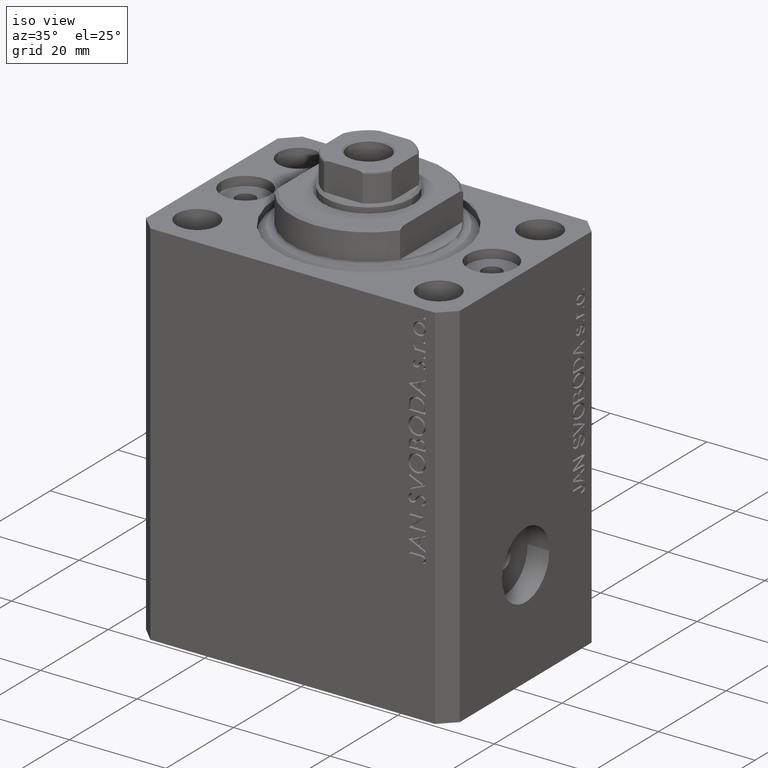
[diagram: clean part render]
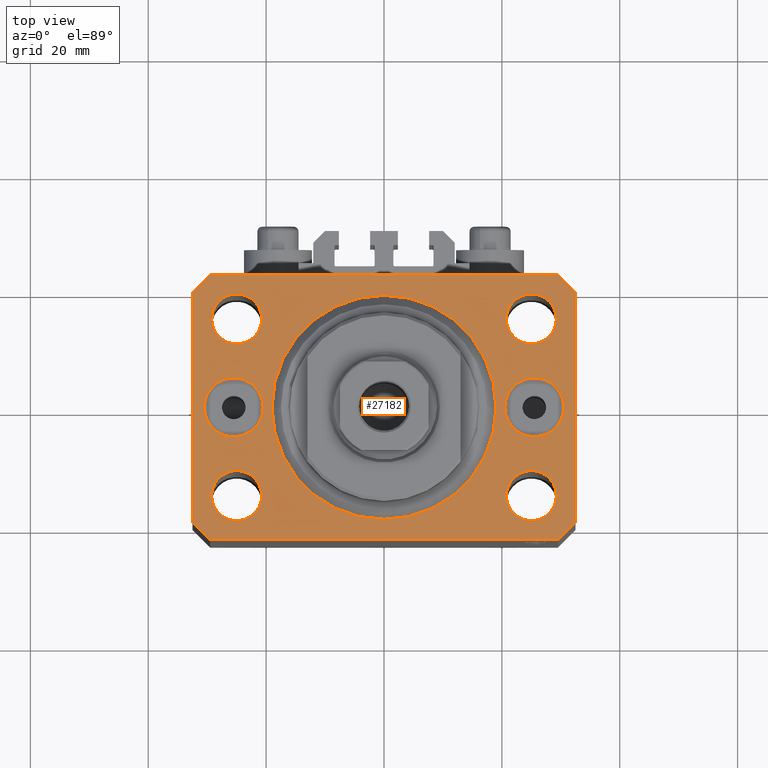
[diagram: tour spotlight — one face highlighted and labeled with its STEP entity id]
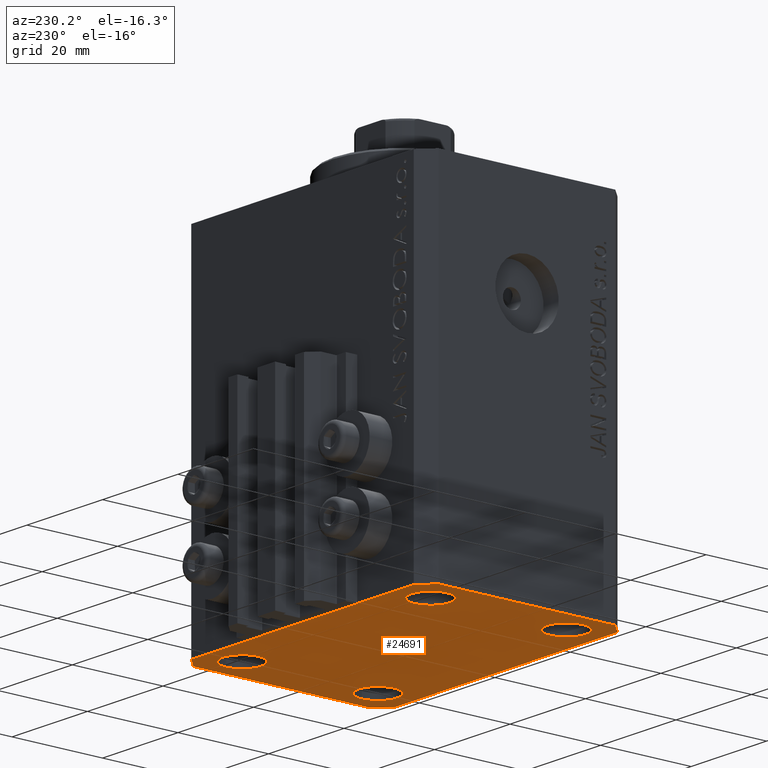
[diagram: tour spotlight — one face highlighted and labeled with its STEP entity id]
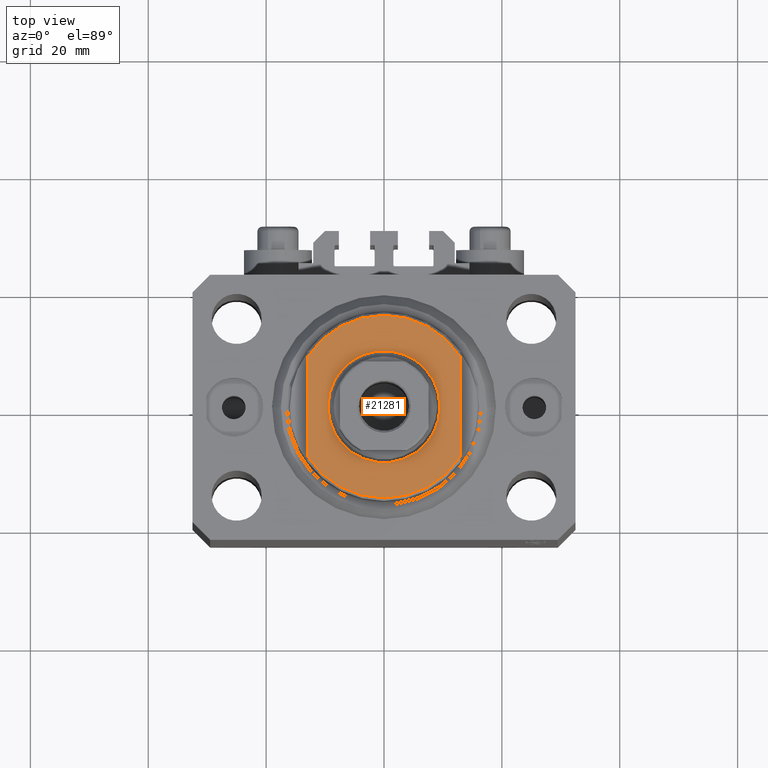
[diagram: tour spotlight — one face highlighted and labeled with its STEP entity id]
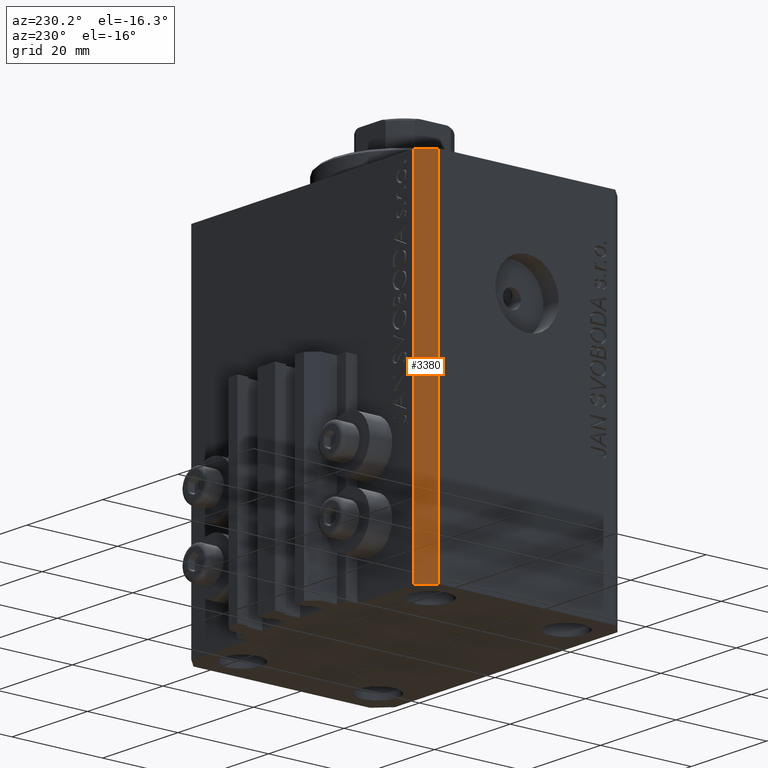
[diagram: tour spotlight — one face highlighted and labeled with its STEP entity id]
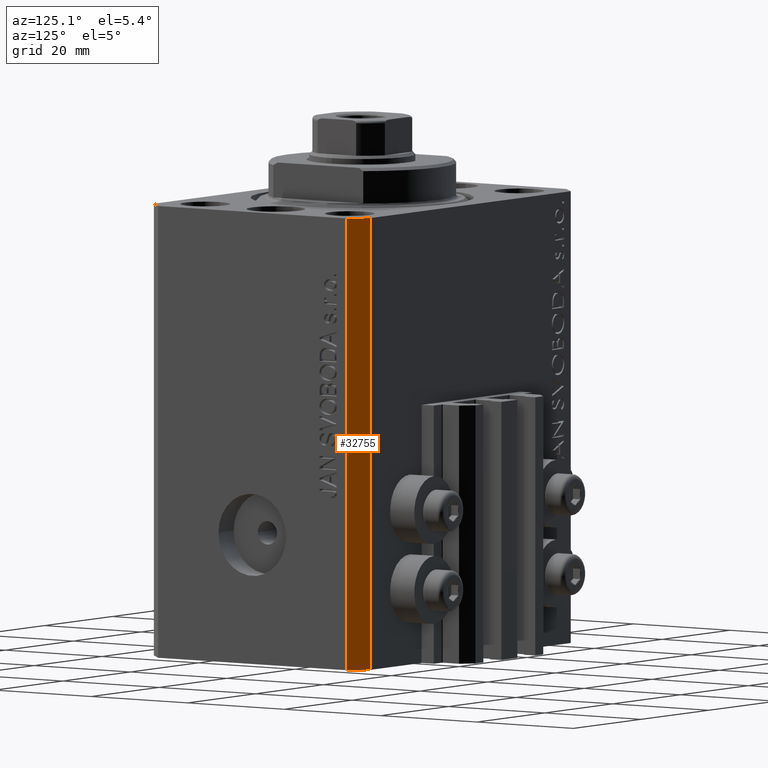
[diagram: tour spotlight — one face highlighted and labeled with its STEP entity id]
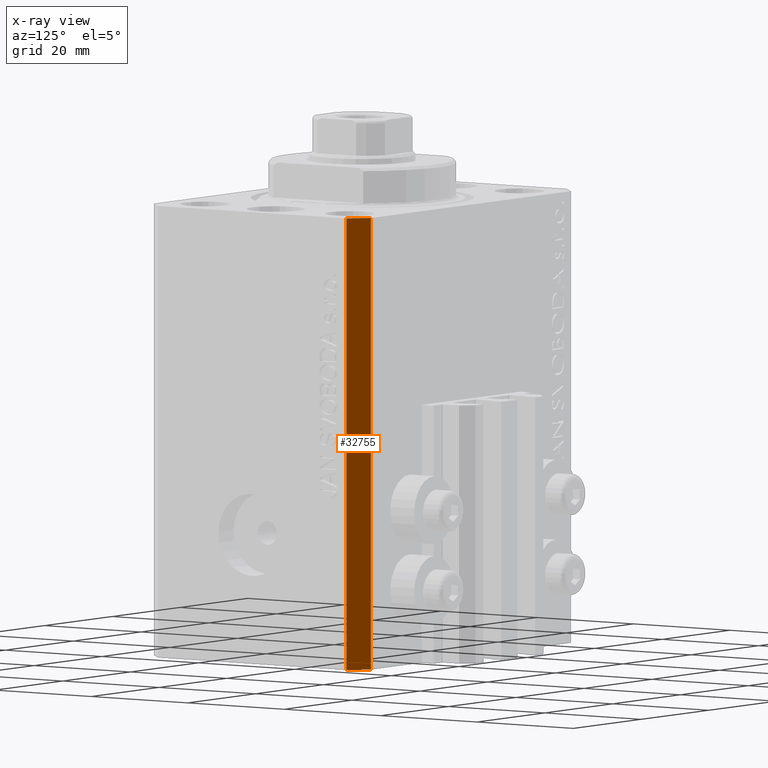
[diagram: x-ray of the same camera — body ghosted, this tour face saturated]
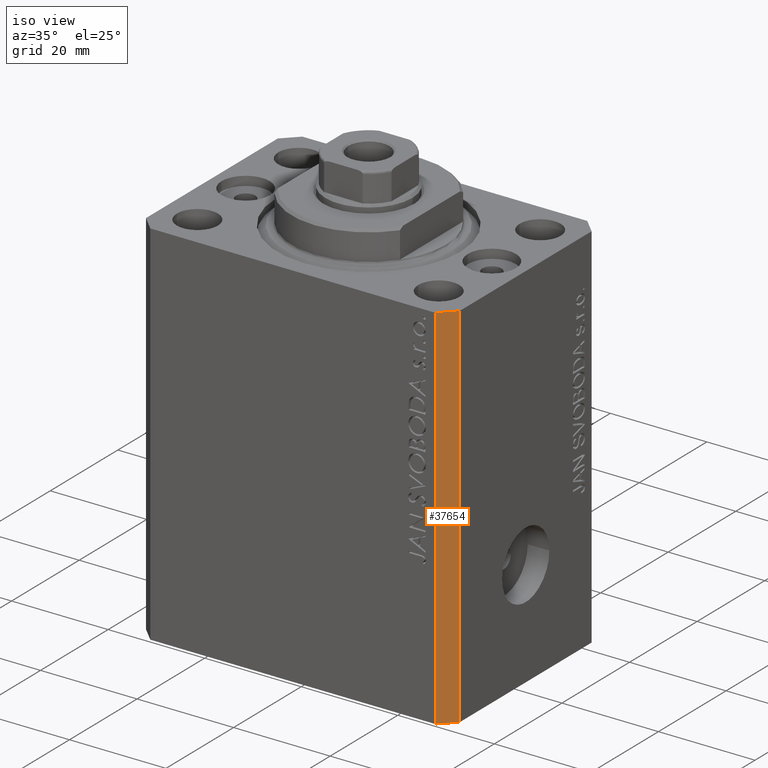
[diagram: tour spotlight — one face highlighted and labeled with its STEP entity id]
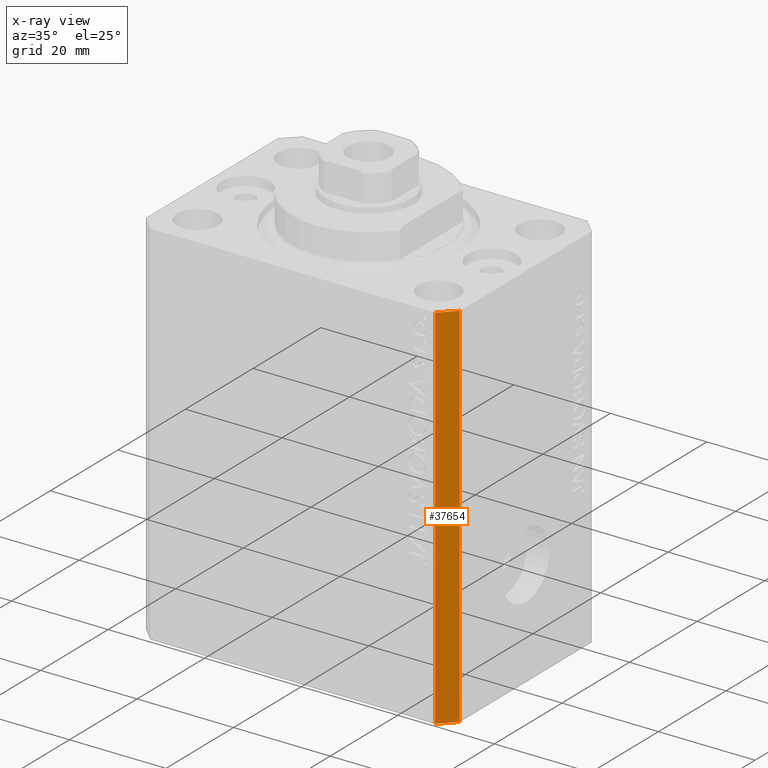
[diagram: x-ray of the same camera — body ghosted, this tour face saturated]
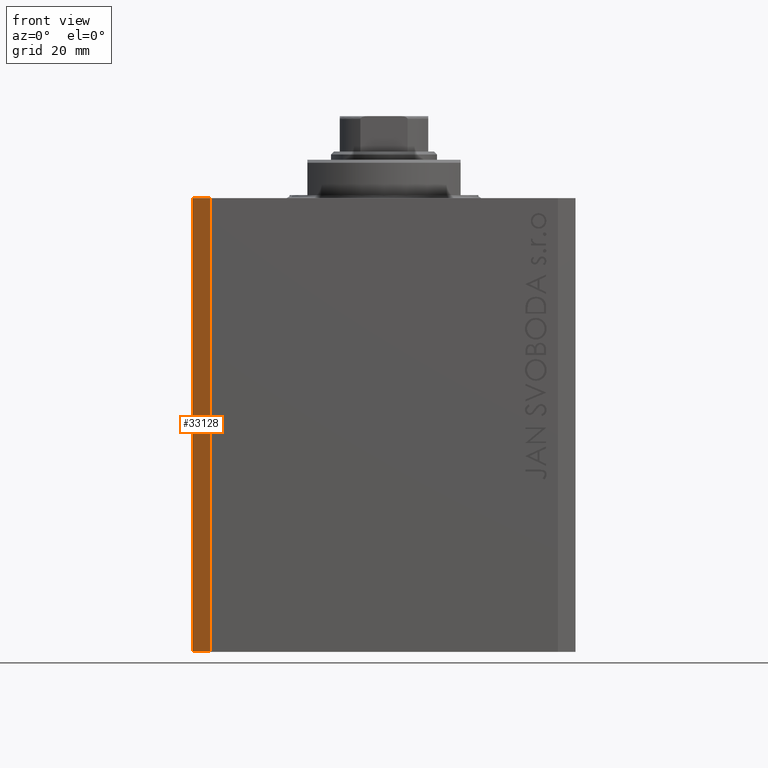
[diagram: tour spotlight — one face highlighted and labeled with its STEP entity id]
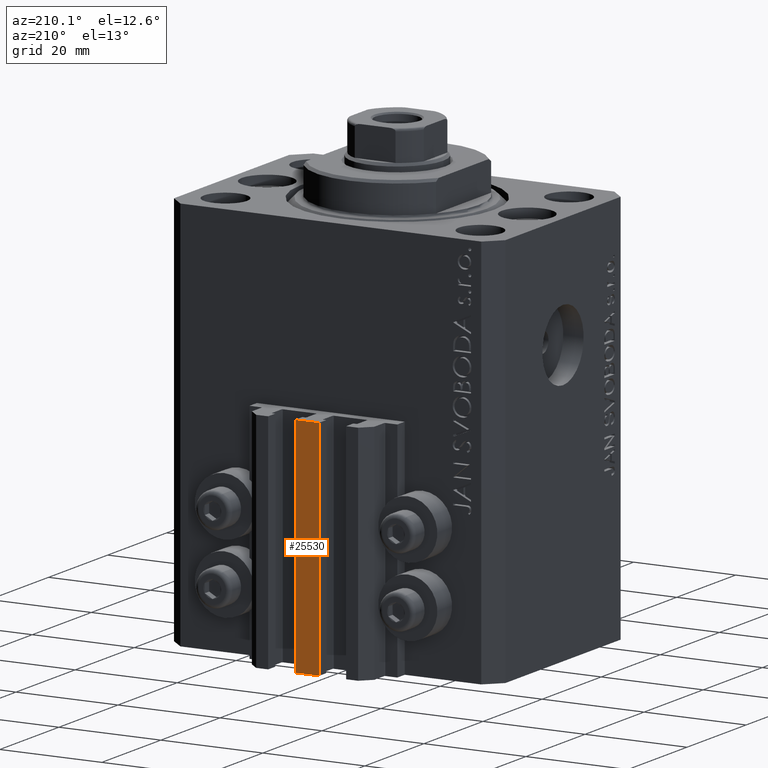
[diagram: tour spotlight — one face highlighted and labeled with its STEP entity id]
A machine part: a face-by-face anatomy tour. The part has 1033 B-rep faces; the first image is the clean iso view, then the 8 largest visible faces are spotlighted one at a time (largest first), each with its STEP entity span.

Face 1 — top view, entity #27182. In plain terms, the highlighted planar face has unit normal (0, 0, 1).
Definition (entity closure, byte-faithful):
#15 = CARTESIAN_POINT ( 'NONE',  ( -24.99999999999999289, -15.00000000000000355, 0.000000000000000000 ) ) ;
#552 = CARTESIAN_POINT ( 'NONE',  ( 25.00000000000000000, 14.99999999999999289, 0.000000000000000000 ) ) ;
#612 = DIRECTION ( 'NONE',  ( 0.000000000000000000, 0.000000000000000000, 1.000000000000000000 ) ) ;
#964 = AXIS2_PLACEMENT_3D ( 'NONE', #30254, #41700, #38351 ) ;
#1404 = CIRCLE ( 'NONE', #8292, 4.250000000040370374 ) ;
#1560 = DIRECTION ( 'NONE',  ( 1.000000000000000000, 0.000000000000000000, 0.000000000000000000 ) ) ;
#1637 = DIRECTION ( 'NONE',  ( -0.7071067811865344721, 0.7071067811865606734, 0.000000000000000000 ) ) ;
#2575 = EDGE_CURVE ( 'NONE', #11910, #44910, #19996, .T. ) ;
#2680 = CARTESIAN_POINT ( 'NONE',  ( -32.49999999999650413, 19.49999999999949907, 0.000000000000000000 ) ) ;
#2895 = DIRECTION ( 'NONE',  ( 1.000000000000000000, 0.000000000000000000, 0.000000000000000000 ) ) ;
#2903 = FACE_BOUND ( 'NONE', #36164, .T. ) ;
#4008 = VERTEX_POINT ( 'NONE', #40506 ) ;
#4134 = EDGE_CURVE ( 'NONE', #31466, #21247, #16990, .T. ) ;
#4197 = AXIS2_PLACEMENT_3D ( 'NONE', #552, #28978, #29923 ) ;
#4260 = DIRECTION ( 'NONE',  ( 1.000000000000000000, 0.000000000000000000, 0.000000000000000000 ) ) ;
#4503 = EDGE_CURVE ( 'NONE', #39502, #46686, #16268, .T. ) ;
#4995 = VERTEX_POINT ( 'NONE', #37355 ) ;
#5553 = LINE ( 'NONE', #16057, #20631 ) ;
#5811 = VERTEX_POINT ( 'NONE', #41770 ) ;
#6120 = EDGE_LOOP ( 'NONE', ( #44069, #7423 ) ) ;
#6139 = CIRCLE ( 'NONE', #31272, 4.250000000040370374 ) ;
#6505 = ORIENTED_EDGE ( 'NONE', *, *, #21276, .F. ) ;
#6633 = CARTESIAN_POINT ( 'NONE',  ( 25.00000000000000000, 14.99999999999999289, 0.000000000000000000 ) ) ;
#6729 = FACE_BOUND ( 'NONE', #33712, .T. ) ;
#6904 = VECTOR ( 'NONE', #16334, 1000.000000000000000 ) ;
#7124 = CARTESIAN_POINT ( 'NONE',  ( -20.74999999995962341, -15.00000000000000355, 0.000000000000000000 ) ) ;
#7423 = ORIENTED_EDGE ( 'NONE', *, *, #4134, .T. ) ;
#7906 = ORIENTED_EDGE ( 'NONE', *, *, #2575, .F. ) ;
#7914 = EDGE_CURVE ( 'NONE', #44910, #11910, #37694, .T. ) ;
#7955 = DIRECTION ( 'NONE',  ( 0.000000000000000000, 0.000000000000000000, 1.000000000000000000 ) ) ;
#8037 = CARTESIAN_POINT ( 'NONE',  ( 20.75000000002367884, -15.00000000000000355, 0.000000000000000000 ) ) ;
#8115 = ORIENTED_EDGE ( 'NONE', *, *, #36888, .F. ) ;
#8292 = AXIS2_PLACEMENT_3D ( 'NONE', #45798, #20495, #41974 ) ;
#8418 = CARTESIAN_POINT ( 'NONE',  ( 0.000000000000000000, 0.000000000000000000, 0.000000000000000000 ) ) ;
#9341 = CARTESIAN_POINT ( 'NONE',  ( 20.75000000004271072, 14.99999999999999289, 0.000000000000000000 ) ) ;
#9593 = CARTESIAN_POINT ( 'NONE',  ( 24.99999999999999289, -15.00000000000000355, 0.000000000000000000 ) ) ;
#9733 = DIRECTION ( 'NONE',  ( 1.000000000000000000, 0.000000000000000000, 0.000000000000000000 ) ) ;
#9916 = DIRECTION ( 'NONE',  ( 0.000000000000000000, 0.000000000000000000, 1.000000000000000000 ) ) ;
#10064 = DIRECTION ( 'NONE',  ( 0.000000000000000000, 0.000000000000000000, 1.000000000000000000 ) ) ;
#10290 = ORIENTED_EDGE ( 'NONE', *, *, #32909, .T. ) ;
#11288 = AXIS2_PLACEMENT_3D ( 'NONE', #26573, #7955, #41120 ) ;
#11535 = ORIENTED_EDGE ( 'NONE', *, *, #23584, .T. ) ;
#11590 = AXIS2_PLACEMENT_3D ( 'NONE', #45735, #9916, #39037 ) ;
#11832 = LINE ( 'NONE', #22831, #19013 ) ;
#11910 = VERTEX_POINT ( 'NONE', #30045 ) ;
#12277 = VERTEX_POINT ( 'NONE', #13011 ) ;
#12305 = DIRECTION ( 'NONE',  ( 1.000000000000000000, 0.000000000000000000, 0.000000000000000000 ) ) ;
#12447 = VERTEX_POINT ( 'NONE', #27943 ) ;
#13011 = CARTESIAN_POINT ( 'NONE',  ( -29.49999999999650413, 22.49999999999949907, 0.000000000000000000 ) ) ;
#13049 = EDGE_CURVE ( 'NONE', #30140, #12447, #43062, .T. ) ;
#13254 = CARTESIAN_POINT ( 'NONE',  ( -32.49999999999650413, 19.49999999999949907, 0.000000000000000000 ) ) ;
#13608 = VECTOR ( 'NONE', #1637, 1000.000000000000000 ) ;
#13661 = FACE_BOUND ( 'NONE', #26842, .T. ) ;
#14029 = ORIENTED_EDGE ( 'NONE', *, *, #23463, .F. ) ;
#14128 = FACE_BOUND ( 'NONE', #6120, .T. ) ;
#14380 = CARTESIAN_POINT ( 'NONE',  ( -29.49999999999650413, -22.49999999999949907, 0.000000000000000000 ) ) ;
#14434 = ORIENTED_EDGE ( 'NONE', *, *, #4503, .F. ) ;
#14524 = CARTESIAN_POINT ( 'NONE',  ( 25.50000000000000000, 0.000000000000000000, 0.000000000000000000 ) ) ;
#14581 = DIRECTION ( 'NONE',  ( 1.000000000000000000, 0.000000000000000000, 0.000000000000000000 ) ) ;
#14721 = ORIENTED_EDGE ( 'NONE', *, *, #39609, .T. ) ;
#14804 = VERTEX_POINT ( 'NONE', #41673 ) ;
#15010 = VECTOR ( 'NONE', #46361, 1000.000000000000000 ) ;
#15108 = CIRCLE ( 'NONE', #28835, 5.000000000003342215 ) ;
#15340 = CARTESIAN_POINT ( 'NONE',  ( -20.49999999999665690, 0.000000000000000000, 0.000000000000000000 ) ) ;
#15386 = DIRECTION ( 'NONE',  ( 1.000000000000000000, 0.000000000000000000, 0.000000000000000000 ) ) ;
#15908 = VERTEX_POINT ( 'NONE', #8037 ) ;
#15990 = VECTOR ( 'NONE', #23294, 1000.000000000000000 ) ;
#16057 = CARTESIAN_POINT ( 'NONE',  ( -32.49999999999650413, -19.49999999999949907, 0.000000000000000000 ) ) ;
#16089 = LINE ( 'NONE', #26377, #6904 ) ;
#16184 = ORIENTED_EDGE ( 'NONE', *, *, #13049, .F. ) ;
#16268 = CIRCLE ( 'NONE', #35328, 19.00000000000000000 ) ;
#16334 = DIRECTION ( 'NONE',  ( -1.000000000000000000, -3.528251137580330676E-16, 0.000000000000000000 ) ) ;
#16764 = LINE ( 'NONE', #2680, #15010 ) ;
#16802 = ORIENTED_EDGE ( 'NONE', *, *, #23768, .F. ) ;
#16990 = CIRCLE ( 'NONE', #964, 5.000000000003342215 ) ;
#18334 = CARTESIAN_POINT ( 'NONE',  ( -32.49999999999650413, -19.49999999999949907, 0.000000000000000000 ) ) ;
#18544 = ORIENTED_EDGE ( 'NONE', *, *, #30740, .F. ) ;
#18641 = EDGE_CURVE ( 'NONE', #26662, #46343, #16764, .T. ) ;
#18775 = EDGE_CURVE ( 'NONE', #12447, #30140, #37889, .T. ) ;
#19013 = VECTOR ( 'NONE', #26407, 1000.000000000000000 ) ;
#19081 = VERTEX_POINT ( 'NONE', #45269 ) ;
#19096 = ORIENTED_EDGE ( 'NONE', *, *, #18641, .T. ) ;
#19739 = ORIENTED_EDGE ( 'NONE', *, *, #27063, .T. ) ;
#19785 = EDGE_CURVE ( 'NONE', #21247, #31466, #28112, .T. ) ;
#19996 = CIRCLE ( 'NONE', #11590, 4.250000000021375790 ) ;
#20495 = DIRECTION ( 'NONE',  ( 0.000000000000000000, 0.000000000000000000, 1.000000000000000000 ) ) ;
#20631 = VECTOR ( 'NONE', #26817, 1000.000000000000114 ) ;
#21247 = VERTEX_POINT ( 'NONE', #27749 ) ;
#21276 = EDGE_CURVE ( 'NONE', #4008, #15908, #24375, .T. ) ;
#21395 = VERTEX_POINT ( 'NONE', #32699 ) ;
#22617 = VERTEX_POINT ( 'NONE', #34198 ) ;
#22748 = DIRECTION ( 'NONE',  ( 0.000000000000000000, 0.000000000000000000, 1.000000000000000000 ) ) ;
#22831 = CARTESIAN_POINT ( 'NONE',  ( 32.49999999999651124, -19.49999999999949196, 0.000000000000000000 ) ) ;
#23069 = DIRECTION ( 'NONE',  ( 0.000000000000000000, 0.000000000000000000, 1.000000000000000000 ) ) ;
#23213 = CARTESIAN_POINT ( 'NONE',  ( 20.49999999999665690, 6.123233995740857512E-16, 0.000000000000000000 ) ) ;
#23294 = DIRECTION ( 'NONE',  ( 0.7071067811865483499, 0.7071067811865466846, 0.000000000000000000 ) ) ;
#23463 = EDGE_CURVE ( 'NONE', #14804, #23727, #15108, .T. ) ;
#23509 = ORIENTED_EDGE ( 'NONE', *, *, #27279, .F. ) ;
#23584 = EDGE_CURVE ( 'NONE', #12277, #26662, #46893, .T. ) ;
#23671 = AXIS2_PLACEMENT_3D ( 'NONE', #38713, #24666, #28233 ) ;
#23727 = VERTEX_POINT ( 'NONE', #15340 ) ;
#23768 = EDGE_CURVE ( 'NONE', #23727, #14804, #40264, .T. ) ;
#24188 = PLANE ( 'NONE',  #23671 ) ;
#24224 = ORIENTED_EDGE ( 'NONE', *, *, #7914, .F. ) ;
#24375 = CIRCLE ( 'NONE', #35010, 4.249999999976314058 ) ;
#24421 = CIRCLE ( 'NONE', #27467, 19.00000000000000000 ) ;
#24666 = DIRECTION ( 'NONE',  ( 0.000000000000000000, 0.000000000000000000, 1.000000000000000000 ) ) ;
#26058 = ORIENTED_EDGE ( 'NONE', *, *, #18775, .F. ) ;
#26377 = CARTESIAN_POINT ( 'NONE',  ( 29.49999999999707967, 22.49999999999952038, 0.000000000000000000 ) ) ;
#26407 = DIRECTION ( 'NONE',  ( 1.334402673828349134E-14, 1.000000000000000000, 0.000000000000000000 ) ) ;
#26573 = CARTESIAN_POINT ( 'NONE',  ( -25.50000000000000000, 0.000000000000000000, 0.000000000000000000 ) ) ;
#26662 = VERTEX_POINT ( 'NONE', #13254 ) ;
#26817 = DIRECTION ( 'NONE',  ( 0.7071067811865474617, -0.7071067811865474617, 0.000000000000000000 ) ) ;
#26842 = EDGE_LOOP ( 'NONE', ( #26058, #16184 ) ) ;
#27063 = EDGE_CURVE ( 'NONE', #46343, #22617, #5553, .T. ) ;
#27182 = ADVANCED_FACE ( 'NONE', ( #31557, #2903, #13661, #6729, #32484, #46838, #43477, #14128 ), #24188, .T. ) ;
#27279 = EDGE_CURVE ( 'NONE', #38671, #19081, #6139, .T. ) ;
#27467 = AXIS2_PLACEMENT_3D ( 'NONE', #45022, #612, #12305 ) ;
#27546 = EDGE_CURVE ( 'NONE', #46686, #39502, #24421, .T. ) ;
#27749 = CARTESIAN_POINT ( 'NONE',  ( 30.50000000000333955, 0.000000000000000000, 0.000000000000000000 ) ) ;
#27943 = CARTESIAN_POINT ( 'NONE',  ( 29.24999999995729283, 14.99999999999999289, 0.000000000000000000 ) ) ;
#28112 = CIRCLE ( 'NONE', #38008, 5.000000000003342215 ) ;
#28233 = DIRECTION ( 'NONE',  ( 1.000000000000000000, 0.000000000000000000, -0.000000000000000000 ) ) ;
#28784 = CARTESIAN_POINT ( 'NONE',  ( 19.00000000000000000, 0.000000000000000000, 0.000000000000000000 ) ) ;
#28835 = AXIS2_PLACEMENT_3D ( 'NONE', #30448, #23069, #1560 ) ;
#28946 = DIRECTION ( 'NONE',  ( 1.000000000000000000, 0.000000000000000000, 0.000000000000000000 ) ) ;
#28967 = CARTESIAN_POINT ( 'NONE',  ( -29.49999999999650413, 22.49999999999949907, 0.000000000000000000 ) ) ;
#28978 = DIRECTION ( 'NONE',  ( 0.000000000000000000, 0.000000000000000000, 1.000000000000000000 ) ) ;
#29086 = DIRECTION ( 'NONE',  ( 0.000000000000000000, -0.000000000000000000, -1.000000000000000000 ) ) ;
#29923 = DIRECTION ( 'NONE',  ( 1.000000000000000000, 0.000000000000000000, 0.000000000000000000 ) ) ;
#30045 = CARTESIAN_POINT ( 'NONE',  ( -29.25000000002137668, 14.99999999999999645, 0.000000000000000000 ) ) ;
#30140 = VERTEX_POINT ( 'NONE', #9341 ) ;
#30254 = CARTESIAN_POINT ( 'NONE',  ( 25.50000000000000000, 0.000000000000000000, 0.000000000000000000 ) ) ;
#30448 = CARTESIAN_POINT ( 'NONE',  ( -25.50000000000000000, 0.000000000000000000, 0.000000000000000000 ) ) ;
#30735 = EDGE_CURVE ( 'NONE', #22617, #4995, #39919, .T. ) ;
#30740 = EDGE_CURVE ( 'NONE', #15908, #4008, #41296, .T. ) ;
#30857 = AXIS2_PLACEMENT_3D ( 'NONE', #41647, #33778, #15386 ) ;
#31064 = EDGE_LOOP ( 'NONE', ( #16802, #14029 ) ) ;
#31228 = VERTEX_POINT ( 'NONE', #40325 ) ;
#31272 = AXIS2_PLACEMENT_3D ( 'NONE', #15, #43938, #14581 ) ;
#31466 = VERTEX_POINT ( 'NONE', #23213 ) ;
#31557 = FACE_OUTER_BOUND ( 'NONE', #43212, .T. ) ;
#32484 = FACE_BOUND ( 'NONE', #40909, .T. ) ;
#32699 = CARTESIAN_POINT ( 'NONE',  ( 32.49999999999651124, -19.49999999999949196, 0.000000000000000000 ) ) ;
#32909 = EDGE_CURVE ( 'NONE', #31228, #12277, #16089, .T. ) ;
#33706 = CARTESIAN_POINT ( 'NONE',  ( -20.74999999997862687, 14.99999999999999645, 0.000000000000000000 ) ) ;
#33712 = EDGE_LOOP ( 'NONE', ( #6505, #18544 ) ) ;
#33778 = DIRECTION ( 'NONE',  ( 0.000000000000000000, 0.000000000000000000, 1.000000000000000000 ) ) ;
#33874 = CARTESIAN_POINT ( 'NONE',  ( 32.49999999999702993, 19.49999999999945999, 0.000000000000000000 ) ) ;
#33987 = EDGE_CURVE ( 'NONE', #21395, #5811, #11832, .T. ) ;
#34198 = CARTESIAN_POINT ( 'NONE',  ( -29.49999999999650413, -22.49999999999949907, 0.000000000000000000 ) ) ;
#34937 = EDGE_LOOP ( 'NONE', ( #14434, #41332 ) ) ;
#35010 = AXIS2_PLACEMENT_3D ( 'NONE', #9593, #10064, #2895 ) ;
#35204 = AXIS2_PLACEMENT_3D ( 'NONE', #39233, #43060, #28946 ) ;
#35328 = AXIS2_PLACEMENT_3D ( 'NONE', #8418, #22748, #37291 ) ;
#36164 = EDGE_LOOP ( 'NONE', ( #24224, #7906 ) ) ;
#36624 = EDGE_CURVE ( 'NONE', #5811, #31228, #45334, .T. ) ;
#36888 = EDGE_CURVE ( 'NONE', #19081, #38671, #1404, .T. ) ;
#37123 = CARTESIAN_POINT ( 'NONE',  ( -19.00000000000000000, 2.326828918379970970E-15, 0.000000000000000000 ) ) ;
#37291 = DIRECTION ( 'NONE',  ( 1.000000000000000000, 0.000000000000000000, 0.000000000000000000 ) ) ;
#37355 = CARTESIAN_POINT ( 'NONE',  ( 29.49999999999650413, -22.49999999999949196, 0.000000000000000000 ) ) ;
#37525 = ORIENTED_EDGE ( 'NONE', *, *, #33987, .T. ) ;
#37694 = CIRCLE ( 'NONE', #30857, 4.250000000021375790 ) ;
#37815 = LINE ( 'NONE', #44991, #15990 ) ;
#37889 = CIRCLE ( 'NONE', #39426, 4.249999999957291053 ) ;
#38008 = AXIS2_PLACEMENT_3D ( 'NONE', #14524, #29086, #4260 ) ;
#38351 = DIRECTION ( 'NONE',  ( 1.000000000000000000, 0.000000000000000000, 0.000000000000000000 ) ) ;
#38671 = VERTEX_POINT ( 'NONE', #7124 ) ;
#38713 = CARTESIAN_POINT ( 'NONE',  ( 0.000000000000000000, 0.000000000000000000, 0.000000000000000000 ) ) ;
#39037 = DIRECTION ( 'NONE',  ( 1.000000000000000000, 0.000000000000000000, 0.000000000000000000 ) ) ;
#39233 = CARTESIAN_POINT ( 'NONE',  ( 24.99999999999999289, -15.00000000000000355, 0.000000000000000000 ) ) ;
#39426 = AXIS2_PLACEMENT_3D ( 'NONE', #6633, #43378, #9733 ) ;
#39502 = VERTEX_POINT ( 'NONE', #28784 ) ;
#39609 = EDGE_CURVE ( 'NONE', #4995, #21395, #37815, .T. ) ;
#39758 = VECTOR ( 'NONE', #40147, 1000.000000000000000 ) ;
#39919 = LINE ( 'NONE', #14380, #39758 ) ;
#40147 = DIRECTION ( 'NONE',  ( 1.000000000000000000, 1.176083712526788232E-16, 0.000000000000000000 ) ) ;
#40264 = CIRCLE ( 'NONE', #11288, 5.000000000003342215 ) ;
#40325 = CARTESIAN_POINT ( 'NONE',  ( 29.49999999999707967, 22.49999999999952038, 0.000000000000000000 ) ) ;
#40506 = CARTESIAN_POINT ( 'NONE',  ( 29.24999999997631051, -15.00000000000000355, 0.000000000000000000 ) ) ;
#40909 = EDGE_LOOP ( 'NONE', ( #23509, #8115 ) ) ;
#41120 = DIRECTION ( 'NONE',  ( 1.000000000000000000, 0.000000000000000000, 0.000000000000000000 ) ) ;
#41296 = CIRCLE ( 'NONE', #35204, 4.249999999976314058 ) ;
#41332 = ORIENTED_EDGE ( 'NONE', *, *, #27546, .F. ) ;
#41647 = CARTESIAN_POINT ( 'NONE',  ( -25.00000000000000000, 14.99999999999999645, 0.000000000000000000 ) ) ;
#41673 = CARTESIAN_POINT ( 'NONE',  ( -30.50000000000333955, 6.123233995740857512E-16, 0.000000000000000000 ) ) ;
#41700 = DIRECTION ( 'NONE',  ( 0.000000000000000000, -0.000000000000000000, -1.000000000000000000 ) ) ;
#41770 = CARTESIAN_POINT ( 'NONE',  ( 32.49999999999702993, 19.49999999999945999, 0.000000000000000000 ) ) ;
#41974 = DIRECTION ( 'NONE',  ( 1.000000000000000000, 0.000000000000000000, 0.000000000000000000 ) ) ;
#42564 = VECTOR ( 'NONE', #43761, 1000.000000000000114 ) ;
#43060 = DIRECTION ( 'NONE',  ( 0.000000000000000000, 0.000000000000000000, 1.000000000000000000 ) ) ;
#43062 = CIRCLE ( 'NONE', #4197, 4.249999999957291053 ) ;
#43165 = ORIENTED_EDGE ( 'NONE', *, *, #30735, .T. ) ;
#43212 = EDGE_LOOP ( 'NONE', ( #10290, #11535, #19096, #19739, #43165, #14721, #37525, #45061 ) ) ;
#43378 = DIRECTION ( 'NONE',  ( 0.000000000000000000, 0.000000000000000000, 1.000000000000000000 ) ) ;
#43477 = FACE_BOUND ( 'NONE', #31064, .T. ) ;
#43761 = DIRECTION ( 'NONE',  ( -0.7071067811865474617, -0.7071067811865474617, 0.000000000000000000 ) ) ;
#43938 = DIRECTION ( 'NONE',  ( 0.000000000000000000, 0.000000000000000000, 1.000000000000000000 ) ) ;
#44069 = ORIENTED_EDGE ( 'NONE', *, *, #19785, .T. ) ;
#44910 = VERTEX_POINT ( 'NONE', #33706 ) ;
#44991 = CARTESIAN_POINT ( 'NONE',  ( 29.49999999999650413, -22.49999999999949196, 0.000000000000000000 ) ) ;
#45022 = CARTESIAN_POINT ( 'NONE',  ( 0.000000000000000000, 0.000000000000000000, 0.000000000000000000 ) ) ;
#45061 = ORIENTED_EDGE ( 'NONE', *, *, #36624, .T. ) ;
#45269 = CARTESIAN_POINT ( 'NONE',  ( -29.25000000004036593, -15.00000000000000355, 0.000000000000000000 ) ) ;
#45334 = LINE ( 'NONE', #33874, #13608 ) ;
#45735 = CARTESIAN_POINT ( 'NONE',  ( -25.00000000000000000, 14.99999999999999645, 0.000000000000000000 ) ) ;
#45798 = CARTESIAN_POINT ( 'NONE',  ( -24.99999999999999289, -15.00000000000000355, 0.000000000000000000 ) ) ;
#46343 = VERTEX_POINT ( 'NONE', #18334 ) ;
#46361 = DIRECTION ( 'NONE',  ( 0.000000000000000000, -1.000000000000000000, 0.000000000000000000 ) ) ;
#46686 = VERTEX_POINT ( 'NONE', #37123 ) ;
#46838 = FACE_BOUND ( 'NONE', #34937, .T. ) ;
#46893 = LINE ( 'NONE', #28967, #42564 ) ;

Face 2 — auxiliary view, entity #24691. In plain terms, the highlighted planar face has unit normal (0, 0, 1).
Definition (entity closure, byte-faithful):
#526 = VERTEX_POINT ( 'NONE', #22994 ) ;
#548 = CARTESIAN_POINT ( 'NONE',  ( 0.000000000000000000, 0.000000000000000000, -77.00000000000000000 ) ) ;
#904 = CARTESIAN_POINT ( 'NONE',  ( 24.99999999999999289, -15.00000000000000355, -77.00000000000000000 ) ) ;
#1024 = EDGE_CURVE ( 'NONE', #16102, #26259, #18862, .T. ) ;
#1074 = DIRECTION ( 'NONE',  ( 0.7071067811865474617, -0.7071067811865474617, 0.000000000000000000 ) ) ;
#1178 = CARTESIAN_POINT ( 'NONE',  ( 29.24999999995729283, 14.99999999999999289, -77.00000000000000000 ) ) ;
#1250 = EDGE_CURVE ( 'NONE', #20041, #41340, #14623, .T. ) ;
#1416 = ORIENTED_EDGE ( 'NONE', *, *, #1024, .F. ) ;
#1423 = EDGE_LOOP ( 'NONE', ( #23517, #21483, #26021, #9669, #40073, #3342, #1416, #45024 ) ) ;
#1736 = EDGE_CURVE ( 'NONE', #526, #37567, #39952, .T. ) ;
#1765 = ORIENTED_EDGE ( 'NONE', *, *, #5617, .F. ) ;
#2162 = DIRECTION ( 'NONE',  ( -0.000000000000000000, -0.000000000000000000, -1.000000000000000000 ) ) ;
#2695 = AXIS2_PLACEMENT_3D ( 'NONE', #13978, #24969, #39497 ) ;
#2698 = LINE ( 'NONE', #7215, #24488 ) ;
#3038 = VECTOR ( 'NONE', #14124, 1000.000000000000000 ) ;
#3224 = VECTOR ( 'NONE', #46649, 1000.000000000000000 ) ;
#3273 = VERTEX_POINT ( 'NONE', #1178 ) ;
#3342 = ORIENTED_EDGE ( 'NONE', *, *, #39549, .F. ) ;
#3365 = CARTESIAN_POINT ( 'NONE',  ( 25.00000000000000000, 14.99999999999999289, -77.00000000000000000 ) ) ;
#3437 = FACE_BOUND ( 'NONE', #19733, .T. ) ;
#3460 = EDGE_LOOP ( 'NONE', ( #17499, #35185 ) ) ;
#4306 = DIRECTION ( 'NONE',  ( -0.000000000000000000, -0.000000000000000000, -1.000000000000000000 ) ) ;
#5291 = VECTOR ( 'NONE', #1074, 1000.000000000000114 ) ;
#5617 = EDGE_CURVE ( 'NONE', #31346, #3273, #6395, .T. ) ;
#6348 = DIRECTION ( 'NONE',  ( 1.000000000000000000, 0.000000000000000000, 0.000000000000000000 ) ) ;
#6395 = CIRCLE ( 'NONE', #14764, 4.249999999957291053 ) ;
#6444 = DIRECTION ( 'NONE',  ( 1.000000000000000000, 0.000000000000000000, 0.000000000000000000 ) ) ;
#6519 = AXIS2_PLACEMENT_3D ( 'NONE', #46327, #2162, #38682 ) ;
#6793 = DIRECTION ( 'NONE',  ( 1.000000000000000000, 0.000000000000000000, -0.000000000000000000 ) ) ;
#6817 = CARTESIAN_POINT ( 'NONE',  ( 20.75000000002367884, -15.00000000000000355, -77.00000000000000000 ) ) ;
#7215 = CARTESIAN_POINT ( 'NONE',  ( 32.49999999999702993, 19.49999999999945999, -77.00000000000000000 ) ) ;
#7320 = CARTESIAN_POINT ( 'NONE',  ( 20.75000000004271072, 14.99999999999999289, -77.00000000000000000 ) ) ;
#7701 = CIRCLE ( 'NONE', #32086, 4.250000000040370374 ) ;
#8028 = VERTEX_POINT ( 'NONE', #21967 ) ;
#8475 = DIRECTION ( 'NONE',  ( -0.000000000000000000, -0.000000000000000000, -1.000000000000000000 ) ) ;
#8517 = CIRCLE ( 'NONE', #45896, 4.250000000021375790 ) ;
#9476 = VERTEX_POINT ( 'NONE', #31195 ) ;
#9669 = ORIENTED_EDGE ( 'NONE', *, *, #33161, .F. ) ;
#10754 = CARTESIAN_POINT ( 'NONE',  ( 29.49999999999707967, 22.49999999999952038, -77.00000000000000000 ) ) ;
#10797 = CARTESIAN_POINT ( 'NONE',  ( 29.49999999999650413, -22.49999999999949196, -77.00000000000000000 ) ) ;
#10869 = CARTESIAN_POINT ( 'NONE',  ( -24.99999999999999289, -15.00000000000000355, -77.00000000000000000 ) ) ;
#11061 = CARTESIAN_POINT ( 'NONE',  ( -29.49999999999650413, -22.49999999999949907, -77.00000000000000000 ) ) ;
#11452 = DIRECTION ( 'NONE',  ( 0.000000000000000000, -1.000000000000000000, 0.000000000000000000 ) ) ;
#11484 = VERTEX_POINT ( 'NONE', #6817 ) ;
#11807 = LINE ( 'NONE', #26380, #5291 ) ;
#12085 = EDGE_LOOP ( 'NONE', ( #28193, #25514 ) ) ;
#13707 = LINE ( 'NONE', #32073, #3224 ) ;
#13859 = VECTOR ( 'NONE', #25646, 1000.000000000000000 ) ;
#13897 = EDGE_CURVE ( 'NONE', #9476, #21140, #24065, .T. ) ;
#13978 = CARTESIAN_POINT ( 'NONE',  ( -25.00000000000000000, 14.99999999999999645, -77.00000000000000000 ) ) ;
#14124 = DIRECTION ( 'NONE',  ( -1.000000000000000000, -3.528251137580330676E-16, 0.000000000000000000 ) ) ;
#14334 = EDGE_CURVE ( 'NONE', #3273, #31346, #27115, .T. ) ;
#14415 = FACE_OUTER_BOUND ( 'NONE', #1423, .T. ) ;
#14443 = CIRCLE ( 'NONE', #20559, 4.249999999976314058 ) ;
#14621 = LINE ( 'NONE', #10797, #28996 ) ;
#14623 = CIRCLE ( 'NONE', #27589, 4.250000000040370374 ) ;
#14764 = AXIS2_PLACEMENT_3D ( 'NONE', #3365, #4306, #18389 ) ;
#14832 = CARTESIAN_POINT ( 'NONE',  ( -24.99999999999999289, -15.00000000000000355, -77.00000000000000000 ) ) ;
#15700 = DIRECTION ( 'NONE',  ( -0.000000000000000000, -0.000000000000000000, -1.000000000000000000 ) ) ;
#16102 = VERTEX_POINT ( 'NONE', #26655 ) ;
#17499 = ORIENTED_EDGE ( 'NONE', *, *, #42439, .F. ) ;
#18389 = DIRECTION ( 'NONE',  ( 1.000000000000000000, 0.000000000000000000, 0.000000000000000000 ) ) ;
#18862 = LINE ( 'NONE', #36762, #42827 ) ;
#19634 = CARTESIAN_POINT ( 'NONE',  ( 29.49999999999707967, 22.49999999999952038, -77.00000000000000000 ) ) ;
#19733 = EDGE_LOOP ( 'NONE', ( #46818, #42222 ) ) ;
#20041 = VERTEX_POINT ( 'NONE', #44267 ) ;
#20347 = ORIENTED_EDGE ( 'NONE', *, *, #14334, .F. ) ;
#20559 = AXIS2_PLACEMENT_3D ( 'NONE', #904, #15700, #45309 ) ;
#21140 = VERTEX_POINT ( 'NONE', #32818 ) ;
#21303 = CARTESIAN_POINT ( 'NONE',  ( -29.49999999999650413, 22.49999999999949907, -77.00000000000000000 ) ) ;
#21353 = FACE_BOUND ( 'NONE', #12085, .T. ) ;
#21483 = ORIENTED_EDGE ( 'NONE', *, *, #29961, .F. ) ;
#21816 = DIRECTION ( 'NONE',  ( 0.000000000000000000, 0.000000000000000000, 1.000000000000000000 ) ) ;
#21859 = DIRECTION ( 'NONE',  ( -0.000000000000000000, -0.000000000000000000, -1.000000000000000000 ) ) ;
#21967 = CARTESIAN_POINT ( 'NONE',  ( -29.49999999999650413, 22.49999999999949907, -77.00000000000000000 ) ) ;
#22408 = CARTESIAN_POINT ( 'NONE',  ( -29.25000000004036593, -15.00000000000000355, -77.00000000000000000 ) ) ;
#22994 = CARTESIAN_POINT ( 'NONE',  ( -29.49999999999650413, -22.49999999999949907, -77.00000000000000000 ) ) ;
#23053 = DIRECTION ( 'NONE',  ( 1.000000000000000000, 0.000000000000000000, 0.000000000000000000 ) ) ;
#23517 = ORIENTED_EDGE ( 'NONE', *, *, #40945, .F. ) ;
#23521 = VERTEX_POINT ( 'NONE', #24483 ) ;
#24065 = CIRCLE ( 'NONE', #2695, 4.250000000021375790 ) ;
#24483 = CARTESIAN_POINT ( 'NONE',  ( 32.49999999999651124, -19.49999999999949196, -77.00000000000000000 ) ) ;
#24488 = VECTOR ( 'NONE', #35638, 1000.000000000000000 ) ;
#24691 = ADVANCED_FACE ( 'NONE', ( #3437, #21353, #36597, #43314, #14415 ), #28974, .F. ) ;
#24969 = DIRECTION ( 'NONE',  ( -0.000000000000000000, -0.000000000000000000, -1.000000000000000000 ) ) ;
#25289 = EDGE_CURVE ( 'NONE', #41991, #11484, #14443, .T. ) ;
#25389 = DIRECTION ( 'NONE',  ( 0.7071067811865483499, 0.7071067811865466846, 0.000000000000000000 ) ) ;
#25514 = ORIENTED_EDGE ( 'NONE', *, *, #39120, .F. ) ;
#25646 = DIRECTION ( 'NONE',  ( 1.000000000000000000, 1.176083712526788232E-16, 0.000000000000000000 ) ) ;
#25993 = VECTOR ( 'NONE', #36097, 1000.000000000000114 ) ;
#26021 = ORIENTED_EDGE ( 'NONE', *, *, #44607, .F. ) ;
#26259 = VERTEX_POINT ( 'NONE', #32654 ) ;
#26380 = CARTESIAN_POINT ( 'NONE',  ( -32.49999999999650413, -19.49999999999949907, -77.00000000000000000 ) ) ;
#26655 = CARTESIAN_POINT ( 'NONE',  ( -32.49999999999650413, 19.49999999999949907, -77.00000000000000000 ) ) ;
#26971 = CARTESIAN_POINT ( 'NONE',  ( 29.49999999999650413, -22.49999999999949196, -77.00000000000000000 ) ) ;
#27115 = CIRCLE ( 'NONE', #6519, 4.249999999957291053 ) ;
#27589 = AXIS2_PLACEMENT_3D ( 'NONE', #10869, #21859, #6444 ) ;
#28176 = CARTESIAN_POINT ( 'NONE',  ( 29.24999999997631051, -15.00000000000000355, -77.00000000000000000 ) ) ;
#28193 = ORIENTED_EDGE ( 'NONE', *, *, #25289, .F. ) ;
#28974 = PLANE ( 'NONE',  #44117 ) ;
#28982 = EDGE_CURVE ( 'NONE', #8028, #16102, #47071, .T. ) ;
#28996 = VECTOR ( 'NONE', #25389, 1000.000000000000000 ) ;
#29038 = EDGE_CURVE ( 'NONE', #41340, #20041, #7701, .T. ) ;
#29625 = DIRECTION ( 'NONE',  ( -0.000000000000000000, -0.000000000000000000, -1.000000000000000000 ) ) ;
#29961 = EDGE_CURVE ( 'NONE', #46908, #39798, #2698, .T. ) ;
#30674 = CARTESIAN_POINT ( 'NONE',  ( 24.99999999999999289, -15.00000000000000355, -77.00000000000000000 ) ) ;
#31195 = CARTESIAN_POINT ( 'NONE',  ( -29.25000000002137668, 14.99999999999999645, -77.00000000000000000 ) ) ;
#31346 = VERTEX_POINT ( 'NONE', #7320 ) ;
#32073 = CARTESIAN_POINT ( 'NONE',  ( 32.49999999999651124, -19.49999999999949196, -77.00000000000000000 ) ) ;
#32086 = AXIS2_PLACEMENT_3D ( 'NONE', #14832, #29625, #44672 ) ;
#32104 = DIRECTION ( 'NONE',  ( -0.000000000000000000, -0.000000000000000000, -1.000000000000000000 ) ) ;
#32654 = CARTESIAN_POINT ( 'NONE',  ( -32.49999999999650413, -19.49999999999949907, -77.00000000000000000 ) ) ;
#32818 = CARTESIAN_POINT ( 'NONE',  ( -20.74999999997862687, 14.99999999999999645, -77.00000000000000000 ) ) ;
#33161 = EDGE_CURVE ( 'NONE', #37567, #23521, #14621, .T. ) ;
#35185 = ORIENTED_EDGE ( 'NONE', *, *, #13897, .F. ) ;
#35638 = DIRECTION ( 'NONE',  ( -0.7071067811865344721, 0.7071067811865606734, 0.000000000000000000 ) ) ;
#36097 = DIRECTION ( 'NONE',  ( -0.7071067811865474617, -0.7071067811865474617, 0.000000000000000000 ) ) ;
#36597 = FACE_BOUND ( 'NONE', #36856, .T. ) ;
#36762 = CARTESIAN_POINT ( 'NONE',  ( -32.49999999999650413, 19.49999999999949907, -77.00000000000000000 ) ) ;
#36856 = EDGE_LOOP ( 'NONE', ( #20347, #1765 ) ) ;
#37567 = VERTEX_POINT ( 'NONE', #26971 ) ;
#38303 = CARTESIAN_POINT ( 'NONE',  ( 32.49999999999702993, 19.49999999999945999, -77.00000000000000000 ) ) ;
#38682 = DIRECTION ( 'NONE',  ( 1.000000000000000000, 0.000000000000000000, 0.000000000000000000 ) ) ;
#39039 = CARTESIAN_POINT ( 'NONE',  ( -25.00000000000000000, 14.99999999999999645, -77.00000000000000000 ) ) ;
#39120 = EDGE_CURVE ( 'NONE', #11484, #41991, #44164, .T. ) ;
#39420 = LINE ( 'NONE', #10754, #3038 ) ;
#39497 = DIRECTION ( 'NONE',  ( 1.000000000000000000, 0.000000000000000000, 0.000000000000000000 ) ) ;
#39549 = EDGE_CURVE ( 'NONE', #26259, #526, #11807, .T. ) ;
#39798 = VERTEX_POINT ( 'NONE', #19634 ) ;
#39952 = LINE ( 'NONE', #11061, #13859 ) ;
#40073 = ORIENTED_EDGE ( 'NONE', *, *, #1736, .F. ) ;
#40945 = EDGE_CURVE ( 'NONE', #39798, #8028, #39420, .T. ) ;
#41340 = VERTEX_POINT ( 'NONE', #22408 ) ;
#41991 = VERTEX_POINT ( 'NONE', #28176 ) ;
#42222 = ORIENTED_EDGE ( 'NONE', *, *, #29038, .F. ) ;
#42439 = EDGE_CURVE ( 'NONE', #21140, #9476, #8517, .T. ) ;
#42827 = VECTOR ( 'NONE', #11452, 1000.000000000000000 ) ;
#43314 = FACE_BOUND ( 'NONE', #3460, .T. ) ;
#44117 = AXIS2_PLACEMENT_3D ( 'NONE', #548, #21816, #6793 ) ;
#44164 = CIRCLE ( 'NONE', #46461, 4.249999999976314058 ) ;
#44267 = CARTESIAN_POINT ( 'NONE',  ( -20.74999999995962341, -15.00000000000000355, -77.00000000000000000 ) ) ;
#44607 = EDGE_CURVE ( 'NONE', #23521, #46908, #13707, .T. ) ;
#44672 = DIRECTION ( 'NONE',  ( 1.000000000000000000, 0.000000000000000000, 0.000000000000000000 ) ) ;
#45024 = ORIENTED_EDGE ( 'NONE', *, *, #28982, .F. ) ;
#45309 = DIRECTION ( 'NONE',  ( 1.000000000000000000, 0.000000000000000000, 0.000000000000000000 ) ) ;
#45896 = AXIS2_PLACEMENT_3D ( 'NONE', #39039, #32104, #6348 ) ;
#46327 = CARTESIAN_POINT ( 'NONE',  ( 25.00000000000000000, 14.99999999999999289, -77.00000000000000000 ) ) ;
#46461 = AXIS2_PLACEMENT_3D ( 'NONE', #30674, #8475, #23053 ) ;
#46649 = DIRECTION ( 'NONE',  ( 1.334402673828349134E-14, 1.000000000000000000, 0.000000000000000000 ) ) ;
#46818 = ORIENTED_EDGE ( 'NONE', *, *, #1250, .F. ) ;
#46908 = VERTEX_POINT ( 'NONE', #38303 ) ;
#47071 = LINE ( 'NONE', #21303, #25993 ) ;

Face 3 — top view, entity #21281. In plain terms, the highlighted planar face has unit normal (0, 0, 1).
Definition (entity closure, byte-faithful):
#308 = VECTOR ( 'NONE', #11899, 1000.000000000000000 ) ;
#440 = LINE ( 'NONE', #23147, #308 ) ;
#1118 = VERTEX_POINT ( 'NONE', #20527 ) ;
#1490 = CARTESIAN_POINT ( 'NONE',  ( 0.000000000000000000, 0.000000000000000000, -6.500000000000000000 ) ) ;
#2431 = DIRECTION ( 'NONE',  ( -1.000000000000000000, 0.000000000000000000, -0.000000000000000000 ) ) ;
#5440 = EDGE_CURVE ( 'NONE', #21392, #34634, #45248, .T. ) ;
#9829 = FACE_BOUND ( 'NONE', #35472, .T. ) ;
#10405 = EDGE_CURVE ( 'NONE', #32459, #31220, #440, .T. ) ;
#10752 = AXIS2_PLACEMENT_3D ( 'NONE', #11849, #40486, #29757 ) ;
#11849 = CARTESIAN_POINT ( 'NONE',  ( 0.000000000000000000, 0.000000000000000000, -6.500000000000000000 ) ) ;
#11899 = DIRECTION ( 'NONE',  ( -0.000000000000000000, -1.000000000000000000, -0.000000000000000000 ) ) ;
#12854 = ORIENTED_EDGE ( 'NONE', *, *, #29445, .T. ) ;
#12899 = AXIS2_PLACEMENT_3D ( 'NONE', #35609, #35133, #2431 ) ;
#13976 = DIRECTION ( 'NONE',  ( 0.000000000000000000, 0.000000000000000000, -1.000000000000000000 ) ) ;
#14240 = CARTESIAN_POINT ( 'NONE',  ( 13.00000000000000000, -43.08131845707602992, -6.500000000000000000 ) ) ;
#18010 = ORIENTED_EDGE ( 'NONE', *, *, #18585, .T. ) ;
#18145 = VECTOR ( 'NONE', #43365, 1000.000000000000000 ) ;
#18585 = EDGE_CURVE ( 'NONE', #27500, #31220, #35617, .T. ) ;
#18614 = CARTESIAN_POINT ( 'NONE',  ( -13.00000000000000000, -8.440971508067137918, -6.500000000000000000 ) ) ;
#19164 = EDGE_CURVE ( 'NONE', #32459, #1118, #30267, .T. ) ;
#20527 = CARTESIAN_POINT ( 'NONE',  ( 13.00000000000000000, 8.440971508067137918, -6.500000000000000000 ) ) ;
#21281 = ADVANCED_FACE ( 'NONE', ( #9829, #24413 ), #31309, .T. ) ;
#21392 = VERTEX_POINT ( 'NONE', #21972 ) ;
#21972 = CARTESIAN_POINT ( 'NONE',  ( 9.500000000000001776, 1.163414459189985880E-15, -6.500000000000000000 ) ) ;
#23147 = CARTESIAN_POINT ( 'NONE',  ( -13.00000000000000000, -43.08131845707602992, -6.500000000000000000 ) ) ;
#23402 = EDGE_CURVE ( 'NONE', #1118, #27500, #46951, .T. ) ;
#23711 = DIRECTION ( 'NONE',  ( -1.000000000000000000, 0.000000000000000000, 0.000000000000000000 ) ) ;
#23964 = CARTESIAN_POINT ( 'NONE',  ( 0.000000000000000000, 0.000000000000000000, -6.500000000000000000 ) ) ;
#24413 = FACE_OUTER_BOUND ( 'NONE', #29272, .T. ) ;
#24581 = CARTESIAN_POINT ( 'NONE',  ( -13.00000000000000000, 8.440971508067137918, -6.500000000000000000 ) ) ;
#24677 = AXIS2_PLACEMENT_3D ( 'NONE', #1490, #26807, #23711 ) ;
#25683 = ORIENTED_EDGE ( 'NONE', *, *, #23402, .T. ) ;
#26807 = DIRECTION ( 'NONE',  ( -0.000000000000000000, -0.000000000000000000, 1.000000000000000000 ) ) ;
#27500 = VERTEX_POINT ( 'NONE', #35974 ) ;
#27945 = CARTESIAN_POINT ( 'NONE',  ( -9.500000000000001776, 0.000000000000000000, -6.500000000000000000 ) ) ;
#28064 = CARTESIAN_POINT ( 'NONE',  ( 0.000000000000000000, 0.000000000000000000, -6.500000000000000000 ) ) ;
#29272 = EDGE_LOOP ( 'NONE', ( #36607, #25683, #18010, #37629 ) ) ;
#29445 = EDGE_CURVE ( 'NONE', #34634, #21392, #33621, .T. ) ;
#29757 = DIRECTION ( 'NONE',  ( -1.000000000000000000, 0.000000000000000000, 0.000000000000000000 ) ) ;
#29883 = ORIENTED_EDGE ( 'NONE', *, *, #5440, .T. ) ;
#30267 = CIRCLE ( 'NONE', #45535, 15.50000000000003730 ) ;
#31220 = VERTEX_POINT ( 'NONE', #18614 ) ;
#31309 = PLANE ( 'NONE',  #12899 ) ;
#31559 = DIRECTION ( 'NONE',  ( -1.000000000000000000, 0.000000000000000000, 0.000000000000000000 ) ) ;
#32459 = VERTEX_POINT ( 'NONE', #24581 ) ;
#33313 = AXIS2_PLACEMENT_3D ( 'NONE', #23964, #38490, #31559 ) ;
#33621 = CIRCLE ( 'NONE', #10752, 9.500000000000001776 ) ;
#34634 = VERTEX_POINT ( 'NONE', #27945 ) ;
#34974 = DIRECTION ( 'NONE',  ( -1.000000000000000000, 0.000000000000000000, 0.000000000000000000 ) ) ;
#35133 = DIRECTION ( 'NONE',  ( 0.000000000000000000, 0.000000000000000000, -1.000000000000000000 ) ) ;
#35472 = EDGE_LOOP ( 'NONE', ( #12854, #29883 ) ) ;
#35609 = CARTESIAN_POINT ( 'NONE',  ( 0.000000000000000000, 0.000000000000000000, -6.500000000000000000 ) ) ;
#35617 = CIRCLE ( 'NONE', #33313, 15.50000000000003730 ) ;
#35974 = CARTESIAN_POINT ( 'NONE',  ( 13.00000000000000000, -8.440971508067137918, -6.500000000000000000 ) ) ;
#36607 = ORIENTED_EDGE ( 'NONE', *, *, #19164, .T. ) ;
#37629 = ORIENTED_EDGE ( 'NONE', *, *, #10405, .F. ) ;
#38490 = DIRECTION ( 'NONE',  ( 0.000000000000000000, 0.000000000000000000, -1.000000000000000000 ) ) ;
#40486 = DIRECTION ( 'NONE',  ( -0.000000000000000000, -0.000000000000000000, 1.000000000000000000 ) ) ;
#43365 = DIRECTION ( 'NONE',  ( 0.000000000000000000, -1.000000000000000000, -0.000000000000000000 ) ) ;
#45248 = CIRCLE ( 'NONE', #24677, 9.500000000000001776 ) ;
#45535 = AXIS2_PLACEMENT_3D ( 'NONE', #28064, #13976, #34974 ) ;
#46951 = LINE ( 'NONE', #14240, #18145 ) ;

Face 4 — auxiliary view, entity #3380. In plain terms, the highlighted planar face has unit normal (-0.7071, 0.7071, 0).
Definition (entity closure, byte-faithful):
#3380 = ADVANCED_FACE ( 'NONE', ( #35052 ), #30535, .T. ) ;
#8028 = VERTEX_POINT ( 'NONE', #21967 ) ;
#10835 = LINE ( 'NONE', #44249, #44611 ) ;
#11541 = DIRECTION ( 'NONE',  ( 0.000000000000000000, 0.000000000000000000, 1.000000000000000000 ) ) ;
#11708 = DIRECTION ( 'NONE',  ( 0.000000000000000000, 0.000000000000000000, 1.000000000000000000 ) ) ;
#12277 = VERTEX_POINT ( 'NONE', #13011 ) ;
#12421 = LINE ( 'NONE', #22707, #42043 ) ;
#13011 = CARTESIAN_POINT ( 'NONE',  ( -29.49999999999650413, 22.49999999999949907, 0.000000000000000000 ) ) ;
#13254 = CARTESIAN_POINT ( 'NONE',  ( -32.49999999999650413, 19.49999999999949907, 0.000000000000000000 ) ) ;
#14014 = EDGE_CURVE ( 'NONE', #16102, #26662, #10835, .T. ) ;
#16102 = VERTEX_POINT ( 'NONE', #26655 ) ;
#16672 = DIRECTION ( 'NONE',  ( -0.7071067811865475727, 0.7071067811865475727, 0.000000000000000000 ) ) ;
#17102 = ORIENTED_EDGE ( 'NONE', *, *, #14014, .T. ) ;
#21303 = CARTESIAN_POINT ( 'NONE',  ( -29.49999999999650413, 22.49999999999949907, -77.00000000000000000 ) ) ;
#21967 = CARTESIAN_POINT ( 'NONE',  ( -29.49999999999650413, 22.49999999999949907, -77.00000000000000000 ) ) ;
#22343 = AXIS2_PLACEMENT_3D ( 'NONE', #42228, #16672, #45806 ) ;
#22707 = CARTESIAN_POINT ( 'NONE',  ( -29.49999999999650413, 22.49999999999949907, -77.00000000000000000 ) ) ;
#23584 = EDGE_CURVE ( 'NONE', #12277, #26662, #46893, .T. ) ;
#25993 = VECTOR ( 'NONE', #36097, 1000.000000000000114 ) ;
#26655 = CARTESIAN_POINT ( 'NONE',  ( -32.49999999999650413, 19.49999999999949907, -77.00000000000000000 ) ) ;
#26662 = VERTEX_POINT ( 'NONE', #13254 ) ;
#28967 = CARTESIAN_POINT ( 'NONE',  ( -29.49999999999650413, 22.49999999999949907, 0.000000000000000000 ) ) ;
#28982 = EDGE_CURVE ( 'NONE', #8028, #16102, #47071, .T. ) ;
#29824 = EDGE_LOOP ( 'NONE', ( #42297, #39525, #41727, #17102 ) ) ;
#30535 = PLANE ( 'NONE',  #22343 ) ;
#35052 = FACE_OUTER_BOUND ( 'NONE', #29824, .T. ) ;
#36097 = DIRECTION ( 'NONE',  ( -0.7071067811865474617, -0.7071067811865474617, 0.000000000000000000 ) ) ;
#39525 = ORIENTED_EDGE ( 'NONE', *, *, #41904, .F. ) ;
#41727 = ORIENTED_EDGE ( 'NONE', *, *, #28982, .T. ) ;
#41904 = EDGE_CURVE ( 'NONE', #8028, #12277, #12421, .T. ) ;
#42043 = VECTOR ( 'NONE', #11708, 1000.000000000000000 ) ;
#42228 = CARTESIAN_POINT ( 'NONE',  ( -29.49999999999650413, 22.49999999999949907, -77.00000000000000000 ) ) ;
#42297 = ORIENTED_EDGE ( 'NONE', *, *, #23584, .F. ) ;
#42564 = VECTOR ( 'NONE', #43761, 1000.000000000000114 ) ;
#43761 = DIRECTION ( 'NONE',  ( -0.7071067811865474617, -0.7071067811865474617, 0.000000000000000000 ) ) ;
#44249 = CARTESIAN_POINT ( 'NONE',  ( -32.49999999999650413, 19.49999999999949907, -77.00000000000000000 ) ) ;
#44611 = VECTOR ( 'NONE', #11541, 1000.000000000000000 ) ;
#45806 = DIRECTION ( 'NONE',  ( -0.7071067811865474617, -0.7071067811865474617, 0.000000000000000000 ) ) ;
#46893 = LINE ( 'NONE', #28967, #42564 ) ;
#47071 = LINE ( 'NONE', #21303, #25993 ) ;

Face 5 — auxiliary view, entity #32755. An x-ray twin of the same camera follows (body ghosted, this face saturated) — the face is partly hidden behind the body. In plain terms, the highlighted planar face has unit normal (0.7071, 0.7071, 0).
Definition (entity closure, byte-faithful):
#1633 = VECTOR ( 'NONE', #25328, 1000.000000000000000 ) ;
#1637 = DIRECTION ( 'NONE',  ( -0.7071067811865344721, 0.7071067811865606734, 0.000000000000000000 ) ) ;
#2698 = LINE ( 'NONE', #7215, #24488 ) ;
#3693 = CARTESIAN_POINT ( 'NONE',  ( 32.49999999999702993, 19.49999999999945999, -77.00000000000000000 ) ) ;
#5811 = VERTEX_POINT ( 'NONE', #41770 ) ;
#6280 = LINE ( 'NONE', #39446, #37760 ) ;
#7215 = CARTESIAN_POINT ( 'NONE',  ( 32.49999999999702993, 19.49999999999945999, -77.00000000000000000 ) ) ;
#10169 = ORIENTED_EDGE ( 'NONE', *, *, #31125, .T. ) ;
#12806 = ORIENTED_EDGE ( 'NONE', *, *, #29961, .T. ) ;
#13608 = VECTOR ( 'NONE', #1637, 1000.000000000000000 ) ;
#14085 = EDGE_CURVE ( 'NONE', #46908, #5811, #6280, .T. ) ;
#14444 = PLANE ( 'NONE',  #34357 ) ;
#14558 = LINE ( 'NONE', #17454, #1633 ) ;
#17454 = CARTESIAN_POINT ( 'NONE',  ( 29.49999999999707967, 22.49999999999952038, -77.00000000000000000 ) ) ;
#17728 = DIRECTION ( 'NONE',  ( 0.000000000000000000, 0.000000000000000000, 1.000000000000000000 ) ) ;
#18731 = DIRECTION ( 'NONE',  ( -0.7071067811865344721, 0.7071067811865606734, 0.000000000000000000 ) ) ;
#19634 = CARTESIAN_POINT ( 'NONE',  ( 29.49999999999707967, 22.49999999999952038, -77.00000000000000000 ) ) ;
#20425 = EDGE_LOOP ( 'NONE', ( #26598, #35529, #12806, #10169 ) ) ;
#24488 = VECTOR ( 'NONE', #35638, 1000.000000000000000 ) ;
#25328 = DIRECTION ( 'NONE',  ( 0.000000000000000000, 0.000000000000000000, 1.000000000000000000 ) ) ;
#26141 = DIRECTION ( 'NONE',  ( 0.7071067811865606734, 0.7071067811865344721, -0.000000000000000000 ) ) ;
#26598 = ORIENTED_EDGE ( 'NONE', *, *, #36624, .F. ) ;
#29961 = EDGE_CURVE ( 'NONE', #46908, #39798, #2698, .T. ) ;
#31125 = EDGE_CURVE ( 'NONE', #39798, #31228, #14558, .T. ) ;
#31228 = VERTEX_POINT ( 'NONE', #40325 ) ;
#32755 = ADVANCED_FACE ( 'NONE', ( #33284 ), #14444, .T. ) ;
#33284 = FACE_OUTER_BOUND ( 'NONE', #20425, .T. ) ;
#33874 = CARTESIAN_POINT ( 'NONE',  ( 32.49999999999702993, 19.49999999999945999, 0.000000000000000000 ) ) ;
#34357 = AXIS2_PLACEMENT_3D ( 'NONE', #3693, #26141, #18731 ) ;
#35529 = ORIENTED_EDGE ( 'NONE', *, *, #14085, .F. ) ;
#35638 = DIRECTION ( 'NONE',  ( -0.7071067811865344721, 0.7071067811865606734, 0.000000000000000000 ) ) ;
#36624 = EDGE_CURVE ( 'NONE', #5811, #31228, #45334, .T. ) ;
#37760 = VECTOR ( 'NONE', #17728, 1000.000000000000000 ) ;
#38303 = CARTESIAN_POINT ( 'NONE',  ( 32.49999999999702993, 19.49999999999945999, -77.00000000000000000 ) ) ;
#39446 = CARTESIAN_POINT ( 'NONE',  ( 32.49999999999702993, 19.49999999999945999, -77.00000000000000000 ) ) ;
#39798 = VERTEX_POINT ( 'NONE', #19634 ) ;
#40325 = CARTESIAN_POINT ( 'NONE',  ( 29.49999999999707967, 22.49999999999952038, 0.000000000000000000 ) ) ;
#41770 = CARTESIAN_POINT ( 'NONE',  ( 32.49999999999702993, 19.49999999999945999, 0.000000000000000000 ) ) ;
#45334 = LINE ( 'NONE', #33874, #13608 ) ;
#46908 = VERTEX_POINT ( 'NONE', #38303 ) ;

Face 6 — iso view, entity #37654. An x-ray twin of the same camera follows (body ghosted, this face saturated) — the face is partly hidden behind the body. In plain terms, the highlighted planar face has unit normal (0.7071, -0.7071, 0).
Definition (entity closure, byte-faithful):
#273 = ORIENTED_EDGE ( 'NONE', *, *, #33161, .T. ) ;
#1578 = CARTESIAN_POINT ( 'NONE',  ( 32.49999999999651124, -19.49999999999949196, -77.00000000000000000 ) ) ;
#4172 = EDGE_LOOP ( 'NONE', ( #32270, #7750, #273, #33956 ) ) ;
#4995 = VERTEX_POINT ( 'NONE', #37355 ) ;
#5158 = LINE ( 'NONE', #1578, #40684 ) ;
#7750 = ORIENTED_EDGE ( 'NONE', *, *, #8955, .F. ) ;
#8955 = EDGE_CURVE ( 'NONE', #37567, #4995, #28046, .T. ) ;
#10656 = EDGE_CURVE ( 'NONE', #23521, #21395, #5158, .T. ) ;
#10797 = CARTESIAN_POINT ( 'NONE',  ( 29.49999999999650413, -22.49999999999949196, -77.00000000000000000 ) ) ;
#12102 = AXIS2_PLACEMENT_3D ( 'NONE', #20280, #42946, #34820 ) ;
#14621 = LINE ( 'NONE', #10797, #28996 ) ;
#15990 = VECTOR ( 'NONE', #23294, 1000.000000000000000 ) ;
#17295 = CARTESIAN_POINT ( 'NONE',  ( 29.49999999999650413, -22.49999999999949196, -77.00000000000000000 ) ) ;
#20280 = CARTESIAN_POINT ( 'NONE',  ( 29.49999999999650413, -22.49999999999949196, -77.00000000000000000 ) ) ;
#21395 = VERTEX_POINT ( 'NONE', #32699 ) ;
#23294 = DIRECTION ( 'NONE',  ( 0.7071067811865483499, 0.7071067811865466846, 0.000000000000000000 ) ) ;
#23521 = VERTEX_POINT ( 'NONE', #24483 ) ;
#24475 = DIRECTION ( 'NONE',  ( 0.000000000000000000, 0.000000000000000000, 1.000000000000000000 ) ) ;
#24483 = CARTESIAN_POINT ( 'NONE',  ( 32.49999999999651124, -19.49999999999949196, -77.00000000000000000 ) ) ;
#25389 = DIRECTION ( 'NONE',  ( 0.7071067811865483499, 0.7071067811865466846, 0.000000000000000000 ) ) ;
#26183 = VECTOR ( 'NONE', #24475, 1000.000000000000000 ) ;
#26971 = CARTESIAN_POINT ( 'NONE',  ( 29.49999999999650413, -22.49999999999949196, -77.00000000000000000 ) ) ;
#28046 = LINE ( 'NONE', #17295, #26183 ) ;
#28996 = VECTOR ( 'NONE', #25389, 1000.000000000000000 ) ;
#30706 = DIRECTION ( 'NONE',  ( 0.000000000000000000, 0.000000000000000000, 1.000000000000000000 ) ) ;
#32270 = ORIENTED_EDGE ( 'NONE', *, *, #39609, .F. ) ;
#32699 = CARTESIAN_POINT ( 'NONE',  ( 32.49999999999651124, -19.49999999999949196, 0.000000000000000000 ) ) ;
#33161 = EDGE_CURVE ( 'NONE', #37567, #23521, #14621, .T. ) ;
#33956 = ORIENTED_EDGE ( 'NONE', *, *, #10656, .T. ) ;
#34820 = DIRECTION ( 'NONE',  ( 0.7071067811865483499, 0.7071067811865466846, 0.000000000000000000 ) ) ;
#37355 = CARTESIAN_POINT ( 'NONE',  ( 29.49999999999650413, -22.49999999999949196, 0.000000000000000000 ) ) ;
#37567 = VERTEX_POINT ( 'NONE', #26971 ) ;
#37654 = ADVANCED_FACE ( 'NONE', ( #39579 ), #45810, .T. ) ;
#37815 = LINE ( 'NONE', #44991, #15990 ) ;
#39579 = FACE_OUTER_BOUND ( 'NONE', #4172, .T. ) ;
#39609 = EDGE_CURVE ( 'NONE', #4995, #21395, #37815, .T. ) ;
#40684 = VECTOR ( 'NONE', #30706, 1000.000000000000000 ) ;
#42946 = DIRECTION ( 'NONE',  ( 0.7071067811865466846, -0.7071067811865483499, 0.000000000000000000 ) ) ;
#44991 = CARTESIAN_POINT ( 'NONE',  ( 29.49999999999650413, -22.49999999999949196, 0.000000000000000000 ) ) ;
#45810 = PLANE ( 'NONE',  #12102 ) ;

Face 7 — front view, entity #33128. In plain terms, the highlighted planar face has unit normal (-0.7071, -0.7071, 0).
Definition (entity closure, byte-faithful):
#526 = VERTEX_POINT ( 'NONE', #22994 ) ;
#871 = LINE ( 'NONE', #11850, #38971 ) ;
#1074 = DIRECTION ( 'NONE',  ( 0.7071067811865474617, -0.7071067811865474617, 0.000000000000000000 ) ) ;
#3414 = PLANE ( 'NONE',  #22924 ) ;
#3639 = FACE_OUTER_BOUND ( 'NONE', #5395, .T. ) ;
#4779 = ORIENTED_EDGE ( 'NONE', *, *, #39549, .T. ) ;
#5291 = VECTOR ( 'NONE', #1074, 1000.000000000000114 ) ;
#5395 = EDGE_LOOP ( 'NONE', ( #11605, #33702, #4779, #15440 ) ) ;
#5553 = LINE ( 'NONE', #16057, #20631 ) ;
#6342 = VECTOR ( 'NONE', #38065, 1000.000000000000000 ) ;
#7459 = DIRECTION ( 'NONE',  ( 0.7071067811865474617, -0.7071067811865474617, 0.000000000000000000 ) ) ;
#11605 = ORIENTED_EDGE ( 'NONE', *, *, #27063, .F. ) ;
#11807 = LINE ( 'NONE', #26380, #5291 ) ;
#11850 = CARTESIAN_POINT ( 'NONE',  ( -29.49999999999650413, -22.49999999999949907, -77.00000000000000000 ) ) ;
#15440 = ORIENTED_EDGE ( 'NONE', *, *, #42263, .T. ) ;
#16057 = CARTESIAN_POINT ( 'NONE',  ( -32.49999999999650413, -19.49999999999949907, 0.000000000000000000 ) ) ;
#18334 = CARTESIAN_POINT ( 'NONE',  ( -32.49999999999650413, -19.49999999999949907, 0.000000000000000000 ) ) ;
#20411 = CARTESIAN_POINT ( 'NONE',  ( -32.49999999999650413, -19.49999999999949907, -77.00000000000000000 ) ) ;
#20631 = VECTOR ( 'NONE', #26817, 1000.000000000000114 ) ;
#22611 = DIRECTION ( 'NONE',  ( 0.000000000000000000, 0.000000000000000000, 1.000000000000000000 ) ) ;
#22617 = VERTEX_POINT ( 'NONE', #34198 ) ;
#22924 = AXIS2_PLACEMENT_3D ( 'NONE', #25160, #25618, #7459 ) ;
#22994 = CARTESIAN_POINT ( 'NONE',  ( -29.49999999999650413, -22.49999999999949907, -77.00000000000000000 ) ) ;
#25160 = CARTESIAN_POINT ( 'NONE',  ( -32.49999999999650413, -19.49999999999949907, -77.00000000000000000 ) ) ;
#25618 = DIRECTION ( 'NONE',  ( -0.7071067811865475727, -0.7071067811865475727, 0.000000000000000000 ) ) ;
#26259 = VERTEX_POINT ( 'NONE', #32654 ) ;
#26380 = CARTESIAN_POINT ( 'NONE',  ( -32.49999999999650413, -19.49999999999949907, -77.00000000000000000 ) ) ;
#26817 = DIRECTION ( 'NONE',  ( 0.7071067811865474617, -0.7071067811865474617, 0.000000000000000000 ) ) ;
#27063 = EDGE_CURVE ( 'NONE', #46343, #22617, #5553, .T. ) ;
#27571 = LINE ( 'NONE', #20411, #6342 ) ;
#32654 = CARTESIAN_POINT ( 'NONE',  ( -32.49999999999650413, -19.49999999999949907, -77.00000000000000000 ) ) ;
#33128 = ADVANCED_FACE ( 'NONE', ( #3639 ), #3414, .T. ) ;
#33702 = ORIENTED_EDGE ( 'NONE', *, *, #46825, .F. ) ;
#34198 = CARTESIAN_POINT ( 'NONE',  ( -29.49999999999650413, -22.49999999999949907, 0.000000000000000000 ) ) ;
#38065 = DIRECTION ( 'NONE',  ( 0.000000000000000000, 0.000000000000000000, 1.000000000000000000 ) ) ;
#38971 = VECTOR ( 'NONE', #22611, 1000.000000000000000 ) ;
#39549 = EDGE_CURVE ( 'NONE', #26259, #526, #11807, .T. ) ;
#42263 = EDGE_CURVE ( 'NONE', #526, #22617, #871, .T. ) ;
#46343 = VERTEX_POINT ( 'NONE', #18334 ) ;
#46825 = EDGE_CURVE ( 'NONE', #26259, #46343, #27571, .T. ) ;

Face 8 — auxiliary view, entity #25530. In plain terms, the highlighted planar face has unit normal (0, -1, 0).
Definition (entity closure, byte-faithful):
#2142 = DIRECTION ( 'NONE',  ( 1.000000000000000000, 0.000000000000000000, 0.000000000000000000 ) ) ;
#2788 = CARTESIAN_POINT ( 'NONE',  ( -2.350000000000003197, 30.49999999999949907, -77.00000000000000000 ) ) ;
#3834 = DIRECTION ( 'NONE',  ( 0.000000000000000000, 0.000000000000000000, 1.000000000000000000 ) ) ;
#4335 = CARTESIAN_POINT ( 'NONE',  ( 2.349999999999999645, 30.49999999999949907, -77.00000000000000000 ) ) ;
#5794 = CARTESIAN_POINT ( 'NONE',  ( -2.350000000000003197, 30.49999999999949907, -77.00000000000000000 ) ) ;
#6560 = EDGE_CURVE ( 'NONE', #15082, #37993, #32948, .T. ) ;
#7300 = DIRECTION ( 'NONE',  ( 0.000000000000000000, -0.000000000000000000, -1.000000000000000000 ) ) ;
#7917 = DIRECTION ( 'NONE',  ( 1.000000000000000000, 0.000000000000000000, 0.000000000000000000 ) ) ;
#9291 = EDGE_LOOP ( 'NONE', ( #13869, #35704, #39297, #45039 ) ) ;
#9552 = CARTESIAN_POINT ( 'NONE',  ( -2.350000000000003197, 30.49999999999949907, -77.00000000000000000 ) ) ;
#9947 = FACE_OUTER_BOUND ( 'NONE', #9291, .T. ) ;
#13869 = ORIENTED_EDGE ( 'NONE', *, *, #35233, .T. ) ;
#15082 = VERTEX_POINT ( 'NONE', #5794 ) ;
#15946 = AXIS2_PLACEMENT_3D ( 'NONE', #2788, #28345, #7300 ) ;
#17848 = EDGE_CURVE ( 'NONE', #15082, #35287, #45140, .T. ) ;
#18024 = LINE ( 'NONE', #47149, #18336 ) ;
#18336 = VECTOR ( 'NONE', #36391, 1000.000000000000000 ) ;
#21402 = PLANE ( 'NONE',  #15946 ) ;
#25444 = VECTOR ( 'NONE', #3834, 1000.000000000000000 ) ;
#25530 = ADVANCED_FACE ( 'NONE', ( #9947 ), #21402, .F. ) ;
#26741 = VERTEX_POINT ( 'NONE', #42607 ) ;
#28345 = DIRECTION ( 'NONE',  ( 0.000000000000000000, -1.000000000000000000, 0.000000000000000000 ) ) ;
#29607 = CARTESIAN_POINT ( 'NONE',  ( -2.350000000000003197, 30.49999999999949907, -77.00000000000000000 ) ) ;
#30950 = CARTESIAN_POINT ( 'NONE',  ( -2.350000000000003197, 30.49999999999949907, -33.00000000000000000 ) ) ;
#32888 = EDGE_CURVE ( 'NONE', #35287, #26741, #18024, .T. ) ;
#32948 = LINE ( 'NONE', #29607, #25444 ) ;
#32972 = LINE ( 'NONE', #43956, #38096 ) ;
#35233 = EDGE_CURVE ( 'NONE', #37993, #26741, #32972, .T. ) ;
#35287 = VERTEX_POINT ( 'NONE', #4335 ) ;
#35704 = ORIENTED_EDGE ( 'NONE', *, *, #32888, .F. ) ;
#36391 = DIRECTION ( 'NONE',  ( 0.000000000000000000, 0.000000000000000000, 1.000000000000000000 ) ) ;
#37099 = VECTOR ( 'NONE', #2142, 1000.000000000000000 ) ;
#37993 = VERTEX_POINT ( 'NONE', #30950 ) ;
#38096 = VECTOR ( 'NONE', #7917, 1000.000000000000000 ) ;
#39297 = ORIENTED_EDGE ( 'NONE', *, *, #17848, .F. ) ;
#42607 = CARTESIAN_POINT ( 'NONE',  ( 2.349999999999999645, 30.49999999999949907, -33.00000000000000000 ) ) ;
#43956 = CARTESIAN_POINT ( 'NONE',  ( -2.350000000000003197, 30.49999999999949907, -33.00000000000000000 ) ) ;
#45039 = ORIENTED_EDGE ( 'NONE', *, *, #6560, .T. ) ;
#45140 = LINE ( 'NONE', #9552, #37099 ) ;
#47149 = CARTESIAN_POINT ( 'NONE',  ( 2.349999999999999645, 30.49999999999949907, -77.00000000000000000 ) ) ;